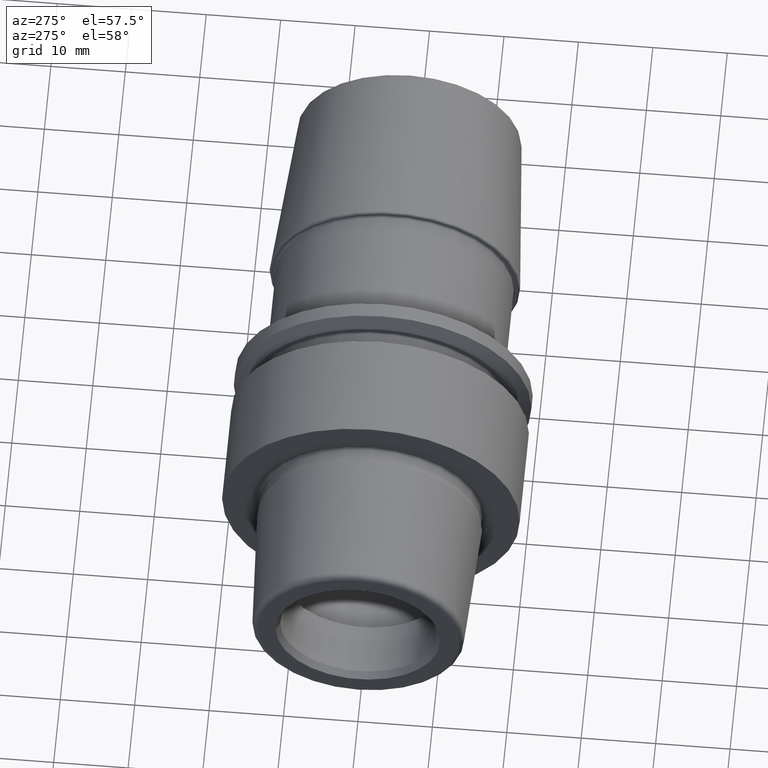
[diagram: clean part render]
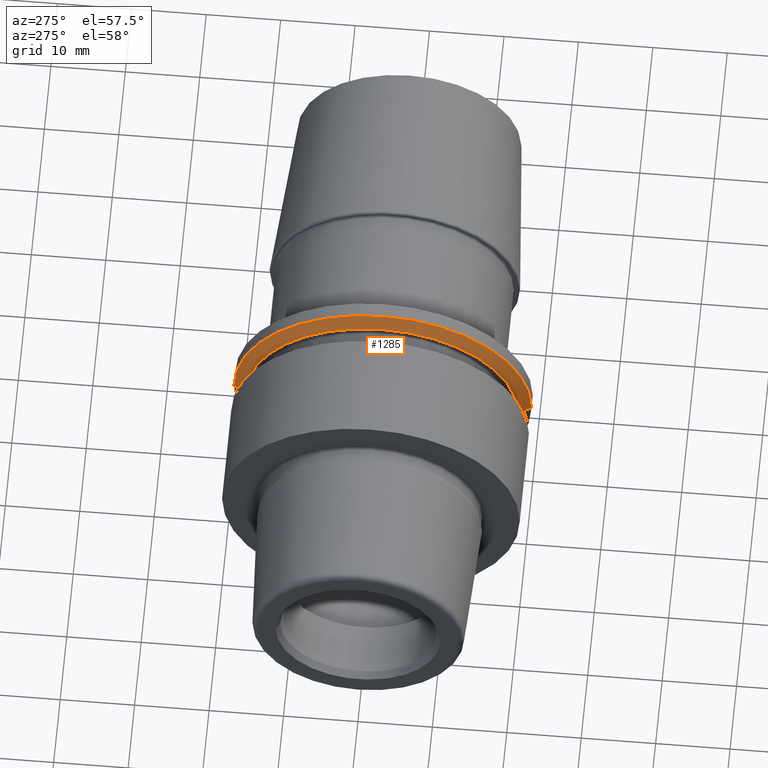
[diagram: same view with one face highlighted and labeled with its STEP entity id]
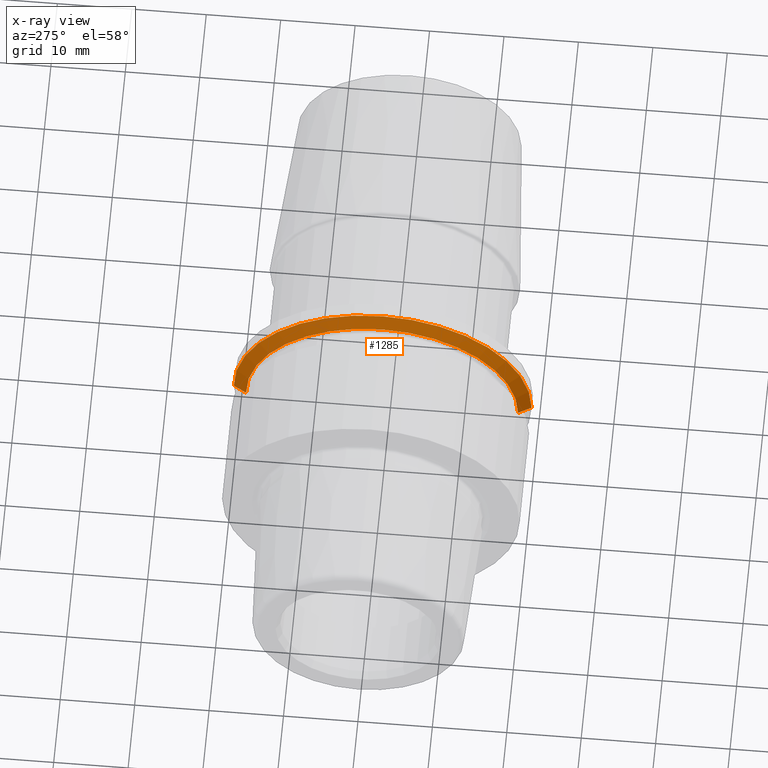
[diagram: x-ray of the same camera — body ghosted, the highlighted face saturated]
A machine part, auxiliary view. The second image highlights one B-rep face of the part: STEP entity #1285.
The next image is the same camera in x-ray: the body ghosted, the highlighted face saturated — about 0% of this face is hidden behind the body in this view.
In plain terms, the highlighted conical surface has half-angle 60 deg.
Its self-contained STEP definition (entity closure, byte-faithful):
#314=CARTESIAN_POINT('',(1.803515969889E1,0.E0,0.E0));
#315=DIRECTION('',(1.E0,0.E0,0.E0));
#316=DIRECTION('',(0.E0,1.E0,0.E0));
#317=AXIS2_PLACEMENT_3D('',#314,#315,#316);
#329=CARTESIAN_POINT('',(1.70375E1,0.E0,0.E0));
#330=DIRECTION('',(1.E0,0.E0,0.E0));
#331=DIRECTION('',(0.E0,1.E0,0.E0));
#332=AXIS2_PLACEMENT_3D('',#329,#330,#331);
#334=DIRECTION('',(5.E-1,8.660254037844E-1,0.E0));
#335=VECTOR('',#334,1.995319397787E0);
#336=CARTESIAN_POINT('',(1.70375E1,1.827200271285E1,0.E0));
#337=LINE('',#336,#335);
#343=DIRECTION('',(5.E-1,-8.660254037844E-1,0.E0));
#344=VECTOR('',#343,1.995319397787E0);
#345=CARTESIAN_POINT('',(1.70375E1,-1.827200271285E1,0.E0));
#346=LINE('',#345,#344);
#688=CARTESIAN_POINT('',(1.70375E1,1.827200271285E1,0.E0));
#689=CARTESIAN_POINT('',(1.70375E1,-1.827200271285E1,0.E0));
#690=VERTEX_POINT('',#688);
#691=VERTEX_POINT('',#689);
#692=CARTESIAN_POINT('',(1.803515969889E1,2.E1,0.E0));
#693=VERTEX_POINT('',#692);
#696=CARTESIAN_POINT('',(1.803515969889E1,-2.E1,0.E0));
#697=VERTEX_POINT('',#696);
#1271=CARTESIAN_POINT('',(1.753632984945E1,0.E0,0.E0));
#1272=DIRECTION('',(1.E0,0.E0,0.E0));
#1273=DIRECTION('',(0.E0,-1.E0,0.E0));
#1274=AXIS2_PLACEMENT_3D('',#1271,#1272,#1273);
#1275=CONICAL_SURFACE('',#1274,1.913600135643E1,6.E1);
#1277=ORIENTED_EDGE('',*,*,#1276,.T.);
#1278=ORIENTED_EDGE('',*,*,#1245,.T.);
#1280=ORIENTED_EDGE('',*,*,#1279,.F.);
#1282=ORIENTED_EDGE('',*,*,#1281,.F.);
#1283=EDGE_LOOP('',(#1277,#1278,#1280,#1282));
#1284=FACE_OUTER_BOUND('',#1283,.F.);
#1285=ADVANCED_FACE('',(#1284),#1275,.T.);
#318=CIRCLE('',#317,2.E1);
#333=CIRCLE('',#332,1.827200271285E1);
#1245=EDGE_CURVE('',#693,#697,#318,.T.);
#1276=EDGE_CURVE('',#690,#693,#337,.T.);
#1279=EDGE_CURVE('',#691,#697,#346,.T.);
#1281=EDGE_CURVE('',#690,#691,#333,.T.);